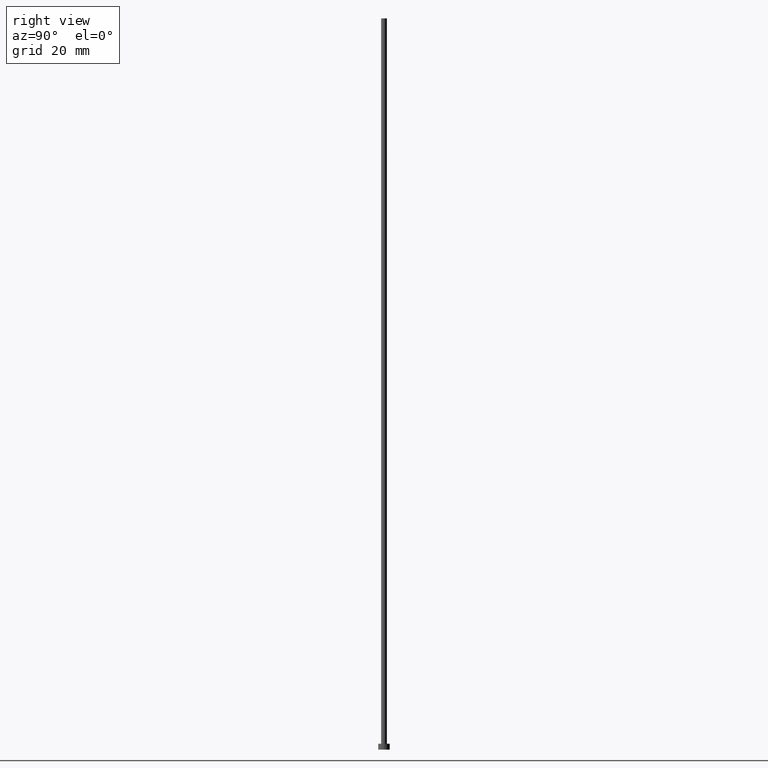
[diagram: clean part render]
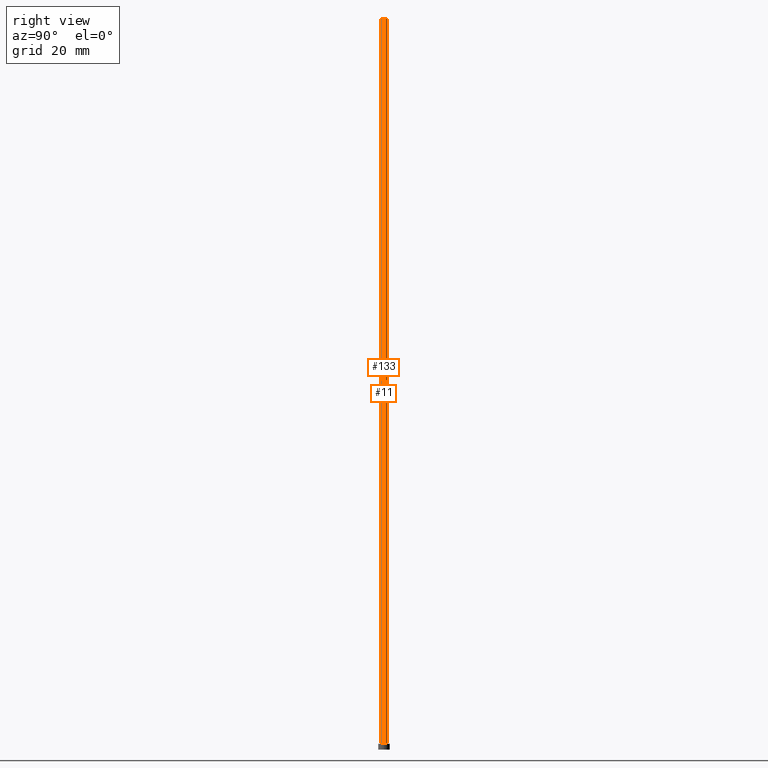
[diagram: same view with one multi-face feature highlighted, each face labeled with its STEP entity id]
A machine part, right view. The highlighted faces form ONE feature: a constant-radius fillet chain: 2 tangent blend faces with common blend radius 1 mm. The faces share edges in the B-rep.
Their STEP definitions:
[1] entity #11 (Cylinder):
#3 = DIRECTION ( 'NONE',  ( 0.000000000000000000, 0.000000000000000000, 1.000000000000000000 ) ) ;
#8 = ORIENTED_EDGE ( 'NONE', *, *, #209, .F. ) ;
#11 = ADVANCED_FACE ( 'NONE', ( #192 ), #196, .T. ) ;
#12 = CIRCLE ( 'NONE', #149, 1.000000000000000000 ) ;
#22 = DIRECTION ( 'NONE',  ( -1.000000000000000000, 0.000000000000000000, 0.000000000000000000 ) ) ;
#26 = CARTESIAN_POINT ( 'NONE',  ( 0.000000000000000000, 0.000000000000000000, 250.0000000000000000 ) ) ;
#27 = LINE ( 'NONE', #139, #43 ) ;
#39 = ORIENTED_EDGE ( 'NONE', *, *, #179, .F. ) ;
#43 = VECTOR ( 'NONE', #189, 1000.000000000000000 ) ;
#50 = EDGE_CURVE ( 'NONE', #107, #251, #174, .T. ) ;
#77 = CARTESIAN_POINT ( 'NONE',  ( -1.000000000000000000, 0.000000000000000000, 250.0000000000000000 ) ) ;
#80 = DIRECTION ( 'NONE',  ( 1.000000000000000000, 0.000000000000000000, 0.000000000000000000 ) ) ;
#81 = CARTESIAN_POINT ( 'NONE',  ( 0.000000000000000000, 0.000000000000000000, 250.0000000000000000 ) ) ;
#84 = VECTOR ( 'NONE', #241, 1000.000000000000000 ) ;
#107 = VERTEX_POINT ( 'NONE', #238 ) ;
#110 = LINE ( 'NONE', #163, #84 ) ;
#115 = ORIENTED_EDGE ( 'NONE', *, *, #50, .T. ) ;
#121 = DIRECTION ( 'NONE',  ( 1.000000000000000000, 0.000000000000000000, 0.000000000000000000 ) ) ;
#122 = AXIS2_PLACEMENT_3D ( 'NONE', #173, #3, #80 ) ;
#124 = ORIENTED_EDGE ( 'NONE', *, *, #253, .T. ) ;
#139 = CARTESIAN_POINT ( 'NONE',  ( -1.000000000000000000, 0.000000000000000000, 250.0000000000000000 ) ) ;
#149 = AXIS2_PLACEMENT_3D ( 'NONE', #81, #240, #121 ) ;
#152 = DIRECTION ( 'NONE',  ( -0.000000000000000000, -0.000000000000000000, -1.000000000000000000 ) ) ;
#163 = CARTESIAN_POINT ( 'NONE',  ( 1.000000000000000000, 1.224646799147353207E-16, 250.0000000000000000 ) ) ;
#165 = VERTEX_POINT ( 'NONE', #77 ) ;
#173 = CARTESIAN_POINT ( 'NONE',  ( 0.000000000000000000, 0.000000000000000000, 2.000000000000000000 ) ) ;
#174 = CIRCLE ( 'NONE', #122, 1.000000000000000000 ) ;
#178 = CARTESIAN_POINT ( 'NONE',  ( -1.000000000000000000, 0.000000000000000000, 2.000000000000000000 ) ) ;
#179 = EDGE_CURVE ( 'NONE', #231, #165, #12, .T. ) ;
#189 = DIRECTION ( 'NONE',  ( -0.000000000000000000, -0.000000000000000000, -1.000000000000000000 ) ) ;
#191 = AXIS2_PLACEMENT_3D ( 'NONE', #26, #152, #22 ) ;
#192 = FACE_OUTER_BOUND ( 'NONE', #250, .T. ) ;
#196 = CYLINDRICAL_SURFACE ( 'NONE', #191, 1.000000000000000000 ) ;
#209 = EDGE_CURVE ( 'NONE', #165, #251, #27, .T. ) ;
#231 = VERTEX_POINT ( 'NONE', #239 ) ;
#238 = CARTESIAN_POINT ( 'NONE',  ( 1.000000000000000000, 1.224646799147353207E-16, 2.000000000000000000 ) ) ;
#239 = CARTESIAN_POINT ( 'NONE',  ( 1.000000000000000000, 1.224646799147353207E-16, 250.0000000000000000 ) ) ;
#240 = DIRECTION ( 'NONE',  ( 0.000000000000000000, 0.000000000000000000, 1.000000000000000000 ) ) ;
#241 = DIRECTION ( 'NONE',  ( -0.000000000000000000, -0.000000000000000000, -1.000000000000000000 ) ) ;
#250 = EDGE_LOOP ( 'NONE', ( #39, #124, #115, #8 ) ) ;
#251 = VERTEX_POINT ( 'NONE', #178 ) ;
#253 = EDGE_CURVE ( 'NONE', #231, #107, #110, .T. ) ;
[2] entity #133 (Cylinder):
#1 = AXIS2_PLACEMENT_3D ( 'NONE', #23, #59, #104 ) ;
#7 = DIRECTION ( 'NONE',  ( -0.000000000000000000, -0.000000000000000000, -1.000000000000000000 ) ) ;
#14 = EDGE_LOOP ( 'NONE', ( #171, #220, #44, #183 ) ) ;
#23 = CARTESIAN_POINT ( 'NONE',  ( 0.000000000000000000, 0.000000000000000000, 250.0000000000000000 ) ) ;
#27 = LINE ( 'NONE', #139, #43 ) ;
#29 = CARTESIAN_POINT ( 'NONE',  ( 0.000000000000000000, 0.000000000000000000, 250.0000000000000000 ) ) ;
#43 = VECTOR ( 'NONE', #189, 1000.000000000000000 ) ;
#44 = ORIENTED_EDGE ( 'NONE', *, *, #209, .T. ) ;
#59 = DIRECTION ( 'NONE',  ( 0.000000000000000000, 0.000000000000000000, 1.000000000000000000 ) ) ;
#62 = EDGE_CURVE ( 'NONE', #251, #107, #67, .T. ) ;
#67 = CIRCLE ( 'NONE', #214, 1.000000000000000000 ) ;
#77 = CARTESIAN_POINT ( 'NONE',  ( -1.000000000000000000, 0.000000000000000000, 250.0000000000000000 ) ) ;
#82 = CARTESIAN_POINT ( 'NONE',  ( 0.000000000000000000, 0.000000000000000000, 2.000000000000000000 ) ) ;
#84 = VECTOR ( 'NONE', #241, 1000.000000000000000 ) ;
#104 = DIRECTION ( 'NONE',  ( 1.000000000000000000, 0.000000000000000000, 0.000000000000000000 ) ) ;
#107 = VERTEX_POINT ( 'NONE', #238 ) ;
#110 = LINE ( 'NONE', #163, #84 ) ;
#113 = DIRECTION ( 'NONE',  ( -1.000000000000000000, 0.000000000000000000, 0.000000000000000000 ) ) ;
#133 = ADVANCED_FACE ( 'NONE', ( #193 ), #197, .T. ) ;
#139 = CARTESIAN_POINT ( 'NONE',  ( -1.000000000000000000, 0.000000000000000000, 250.0000000000000000 ) ) ;
#141 = CIRCLE ( 'NONE', #1, 1.000000000000000000 ) ;
#163 = CARTESIAN_POINT ( 'NONE',  ( 1.000000000000000000, 1.224646799147353207E-16, 250.0000000000000000 ) ) ;
#164 = AXIS2_PLACEMENT_3D ( 'NONE', #29, #7, #113 ) ;
#165 = VERTEX_POINT ( 'NONE', #77 ) ;
#171 = ORIENTED_EDGE ( 'NONE', *, *, #253, .F. ) ;
#178 = CARTESIAN_POINT ( 'NONE',  ( -1.000000000000000000, 0.000000000000000000, 2.000000000000000000 ) ) ;
#183 = ORIENTED_EDGE ( 'NONE', *, *, #62, .T. ) ;
#189 = DIRECTION ( 'NONE',  ( -0.000000000000000000, -0.000000000000000000, -1.000000000000000000 ) ) ;
#193 = FACE_OUTER_BOUND ( 'NONE', #14, .T. ) ;
#197 = CYLINDRICAL_SURFACE ( 'NONE', #164, 1.000000000000000000 ) ;
#209 = EDGE_CURVE ( 'NONE', #165, #251, #27, .T. ) ;
#214 = AXIS2_PLACEMENT_3D ( 'NONE', #82, #242, #245 ) ;
#220 = ORIENTED_EDGE ( 'NONE', *, *, #232, .F. ) ;
#231 = VERTEX_POINT ( 'NONE', #239 ) ;
#232 = EDGE_CURVE ( 'NONE', #165, #231, #141, .T. ) ;
#238 = CARTESIAN_POINT ( 'NONE',  ( 1.000000000000000000, 1.224646799147353207E-16, 2.000000000000000000 ) ) ;
#239 = CARTESIAN_POINT ( 'NONE',  ( 1.000000000000000000, 1.224646799147353207E-16, 250.0000000000000000 ) ) ;
#241 = DIRECTION ( 'NONE',  ( -0.000000000000000000, -0.000000000000000000, -1.000000000000000000 ) ) ;
#242 = DIRECTION ( 'NONE',  ( 0.000000000000000000, 0.000000000000000000, 1.000000000000000000 ) ) ;
#245 = DIRECTION ( 'NONE',  ( 1.000000000000000000, 0.000000000000000000, 0.000000000000000000 ) ) ;
#251 = VERTEX_POINT ( 'NONE', #178 ) ;
#253 = EDGE_CURVE ( 'NONE', #231, #107, #110, .T. ) ;